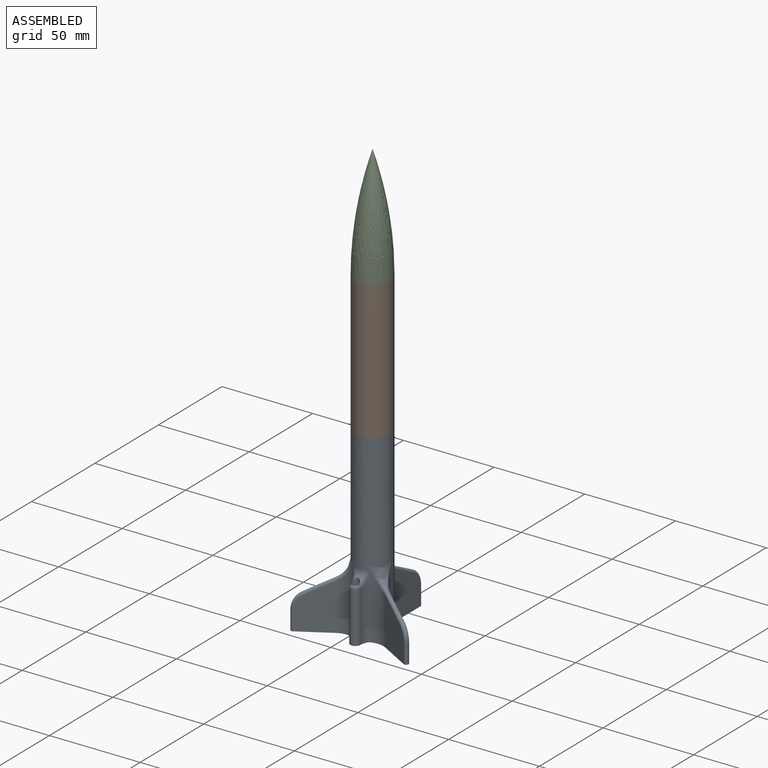
[diagram: assembled view]
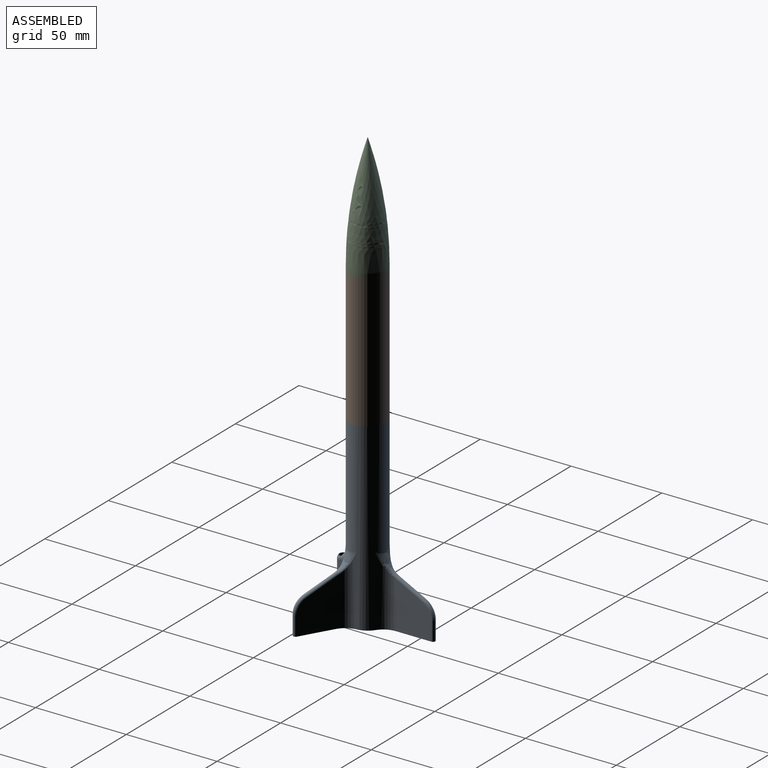
[diagram: assembled view, second angle]
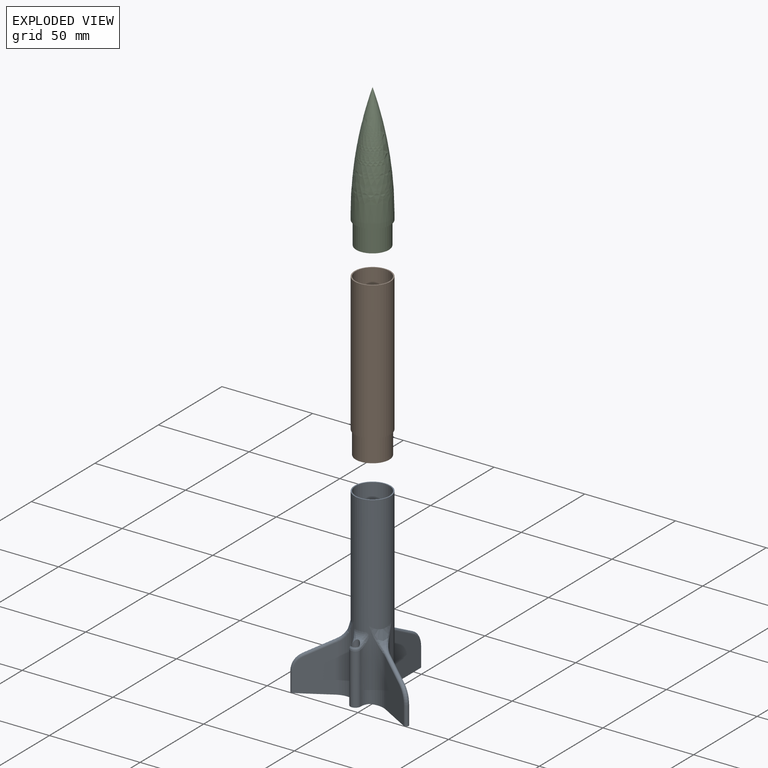
[diagram: exploded view]
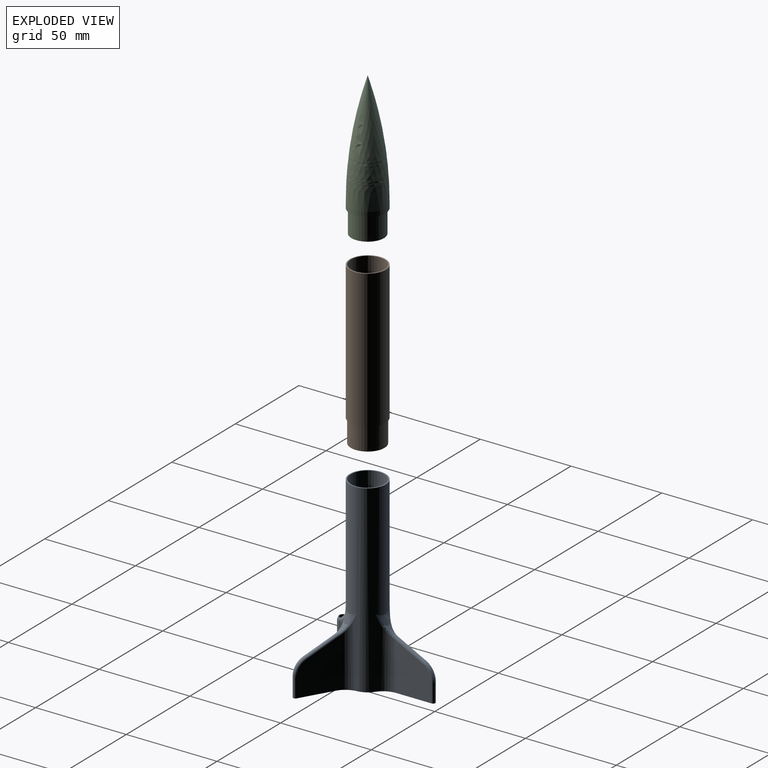
[diagram: exploded view, second angle]
ASSEMBLY  parts=3 mates=2
PART A: 57 faces, bbox 66.1x57.7x101.6 mm
  f0: cylinder r=9.28mm len=18.57mm, axis (0,0,-1), area 889mm2, adj f3,f53
  f1: cylinder r=9.28mm len=73.66mm, axis (0,0,-1), area 4288.1mm2, adj f4,f54,f55,f56
  f2: cylinder r=9.92mm len=101.6mm, axis (0,0,-1), area 4668mm2, adj f3,f4,f8,f9,f10,f21,f22,f23
  f3: plane 19.84x19.84mm, normal (0,0,1), area 38.3mm2, adj f0,f2
  f4: plane 64.87x56.52mm, normal (0,0,-1), area 307.4mm2, adj f1,f2,f5,f6,f8,f9,f17,f18
  f5: plane 25.94x19.48mm, normal (1,0,0), area 403.2mm2, adj f4,f9,f15,f16,f17
  f6: plane 25.94x19.48mm, normal (-1,0,0), area 403.2mm2, adj f4,f8,f15,f16,f17
  f7: plane 1.64x0.84mm, normal (0,0.46,0.89), area 0.1mm2, adj f10,f13,f14
  f8: cylinder r=10.16mm len=38.78mm, axis (0,0,-1), area 300.1mm2, adj f2,f4,f6,f11,f13
  f9: cylinder r=10.16mm len=38.78mm, axis (0,0,-1), area 300.1mm2, adj f2,f4,f5,f12,f14
  f10: bspline ~22.86x10.87mm, area 53.6mm2, adj f2,f7,f11,f12
  f11: bspline ~12.73x8.84mm, area 10mm2, adj f8,f10,f13
  f12: bspline ~12.73x8.84mm, area 9.9mm2, adj f9,f10,f14
  f13: bspline ~2.03x1.97mm, area 3.4mm2, adj f7,f8,f11,f15
  f14: bspline ~2.03x1.97mm, area 3.4mm2, adj f7,f9,f12,f15
  f15: cylinder r=1.27mm len=15.21mm, axis (0,-0.89,0.46), area 65.6mm2, adj f5,f6,f13,f14,f16
  f16: torus R=8.89mm, axis (1,0,0), area 42.5mm2, adj f5,f6,f15,f17
  f17: cylinder r=1.27mm len=10.54mm, axis (0,0,1), area 42mm2, adj f4,f5,f6,f16
  f18: plane 25.94x16.87mm, normal (-0.5,-0.87,0), area 403.2mm2, adj f4,f23,f27,f29,f30
  f19: plane 1.48x0.92mm, normal (0.39,-0.23,0.89), area 0.1mm2, adj f22,f25,f28
  f20: plane 25.94x16.87mm, normal (0.5,0.87,0), area 403.2mm2, adj f4,f21,f27,f29,f30
  f21: cylinder r=10.16mm len=38.78mm, axis (0,0,-1), area 300.1mm2, adj f2,f4,f20,f26,f28
  f22: bspline ~19.8x12.52mm, area 53.6mm2, adj f2,f19,f24,f26
  f23: cylinder r=10.16mm len=38.78mm, axis (0,0,-1), area 300.1mm2, adj f2,f4,f18,f24,f25,f45
  f24: bspline ~12.73x10.49mm, area 9.9mm2, adj f22,f23,f25
  f25: bspline ~2.45x1.97mm, area 3.4mm2, adj f19,f23,f24,f27
  f26: bspline ~12.73x9.32mm, area 10mm2, adj f21,f22,f28
  f27: cylinder r=1.27mm len=14.12mm, axis (0.77,-0.45,-0.46), area 65.6mm2, adj f18,f20,f25,f28,f29
  f28: bspline ~2.21x1.97mm, area 3.4mm2, adj f19,f21,f26,f27
  f29: torus R=8.89mm, axis (-0.5,-0.87,0), area 42.5mm2, adj f18,f20,f27,f30
  f30: cylinder r=1.27mm len=10.54mm, axis (0,0,-1), area 42mm2, adj f4,f18,f20,f29
  f31: plane 25.94x16.87mm, normal (0.5,-0.87,0), area 403.2mm2, adj f4,f34,f40,f42,f43
  f32: plane 1.48x0.92mm, normal (-0.39,-0.23,0.89), area 0.1mm2, adj f35,f38,f41
  f33: plane 25.94x16.87mm, normal (-0.5,0.87,0), area 403.2mm2, adj f4,f36,f40,f42,f43
  f34: cylinder r=10.16mm len=38.78mm, axis (0,0,-1), area 300.1mm2, adj f2,f4,f31,f39,f41,f44
  f35: bspline ~19.8x12.52mm, area 53.6mm2, adj f2,f32,f37,f39
  f36: cylinder r=10.16mm len=38.78mm, axis (0,0,-1), area 300.1mm2, adj f2,f4,f33,f37,f38
  f37: bspline ~12.73x9.32mm, area 9.9mm2, adj f35,f36,f38
  f38: bspline ~2.21x1.97mm, area 3.4mm2, adj f32,f36,f37,f40
  f39: bspline ~12.73x10.49mm, area 10mm2, adj f34,f35,f41
  f40: cylinder r=1.27mm len=14.12mm, axis (-0.77,-0.45,-0.46), area 65.6mm2, adj f31,f33,f38,f41,f42
  f41: bspline ~2.45x1.97mm, area 3.4mm2, adj f32,f34,f39,f40
  f42: torus R=8.89mm, axis (-0.5,0.87,0), area 42.5mm2, adj f31,f33,f40,f43
  f43: cylinder r=1.27mm len=10.54mm, axis (0,0,-1), area 42mm2, adj f4,f31,f33,f42
  f44: cylinder r=7.73mm len=33.12mm, axis (0,0,-1), area 149.7mm2, adj f4,f34,f46,f51
  f45: cylinder r=7.73mm len=33.12mm, axis (0,0,-1), area 149.7mm2, adj f4,f23,f46,f49
  f46: cylinder r=2.74mm len=28.08mm, axis (0,0,-1), area 242mm2, adj f4,f44,f45,f50
  f47: cylinder r=2.1mm len=31.93mm, axis (0,0,-1), area 400.6mm2, adj f4,f48,f49,f50,f51
  f48: torus R=15mm, axis (0,0,-1), area 20mm2, adj f2,f47,f49,f51
  f49: bspline ~8x6.43mm, area 18.5mm2, adj f2,f45,f47,f48,f50
  f50: bspline ~5.49x2.74mm, area 13.4mm2, adj f46,f47,f49,f51
  f51: bspline ~7.92x5.73mm, area 17.4mm2, adj f2,f44,f47,f48,f50
  f52: cylinder r=7.62mm len=15.24mm, axis (0,0,-1), area 608mm2, adj f53,f54
  f53: plane 18.57x18.57mm, normal (0,0,1), area 88.4mm2, adj f0,f52
  f54: plane 18.57x18.57mm, normal (0,0,-1), area 88.4mm2, adj f1,f52
  f55: cylinder r=2.54mm len=3.75mm, axis (0,0,-1), area 9.6mm2, adj f1,f4,f56
  f56: plane 3.75x1.02mm, normal (0,0,1), area 2.6mm2, adj f1,f55
PART B: 14 faces, bbox 20x19.8x88.9 mm
  f0: cylinder r=9.28mm len=67.02mm, axis (0,0,-1), area 3683.7mm2, adj f2,f7,f8,f12,f13
  f1: cylinder r=9.92mm len=76.2mm, axis (0,0,-1), area 4748.9mm2, adj f2,f3
  f2: plane 19.84x19.84mm, normal (0,0,1), area 38.3mm2, adj f0,f1
  f3: plane 19.84x19.84mm, normal (0,0,-1), area 38.3mm2, adj f1,f4
  f4: cylinder r=9.28mm len=18.57mm, axis (0,0,1), area 740.8mm2, adj f3,f6
  f5: cylinder r=8.42mm len=19.05mm, axis (0,0,1), area 1007.8mm2, adj f6,f7
  f6: plane 18.57x18.57mm, normal (0,0,-1), area 48mm2, adj f4,f5
  f7: torus R=4.2mm, axis (0,0,-1), area 169.8mm2, adj f0,f5
  f8: cylinder r=4.19mm len=26.67mm, axis (0,0,1), area 227.1mm2, adj f0,f10,f11,f12,f13
  f9: cylinder r=1.65mm len=23.93mm, axis (0,0,1), area 216.3mm2, adj f12,f13
  f10: plane 2.66x0.38mm, normal (0,0,-1), area 0.7mm2, adj f8,f13
  f11: plane 2.66x0.38mm, normal (0,0,1), area 0.7mm2, adj f8,f12
  f12: torus R=5.47mm, axis (0,0,1), area 31mm2, adj f0,f8,f9,f11
  f13: torus R=5.47mm, axis (0,0,1), area 31mm2, adj f0,f8,f9,f10
PART C: 15 faces, bbox 19.8x19.8x78.7 mm
  f0: plane 18.57x18.57mm, normal (0,0,1), area 52mm2, adj f2,f14
  f1: cylinder r=8.98mm len=17.96mm, axis (0,0,-1), area 716.5mm2, adj f3,f12
  f2: cylinder r=8.34mm len=16.69mm, axis (0,0,-1), area 721.1mm2, adj f0,f3,f6,f7,f8,f9,f10
  f3: plane 17.96x17.96mm, normal (0,0,-1), area 79.4mm2, adj f1,f2,f4,f5,f7,f8,f9,f10
  f4: plane 13.2x6.35mm, normal (-1,0,0), area 83.8mm2, adj f3,f6,f7,f10
  f5: plane 13.2x6.35mm, normal (1,0,0), area 83.8mm2, adj f3,f6,f8,f9
  f6: plane 16.69x5.99mm, normal (0,0,1), area 44.9mm2, adj f2,f4,f5,f7,f8,f9,f10
  f7: cylinder r=1.27mm len=6.35mm, axis (0,0,-1), area 15.6mm2, adj f2,f3,f4,f6
  f8: cylinder r=1.27mm len=6.35mm, axis (0,0,-1), area 15.6mm2, adj f2,f3,f5,f6
  f9: cylinder r=1.27mm len=6.35mm, axis (0,0,-1), area 15.6mm2, adj f2,f3,f5,f6
  f10: cylinder r=1.27mm len=6.35mm, axis (0,0,-1), area 15.6mm2, adj f2,f3,f4,f6
  f11: cylinder r=9.92mm len=19.84mm, axis (0,0,1), area 158.3mm2, adj f12,f13
  f12: plane 19.84x19.84mm, normal (0,0,-1), area 55.8mm2, adj f1,f11
  f13: revolved ~63.5x19.84mm, area 2676.7mm2, adj f11
  f14: revolved ~61.39x18.57mm, area 2419.7mm2, adj f0
PLACE A t=(-50.68,62.54,-25.41)mm
PLACE B t=(-50.68,62.54,76.19)mm
PLACE C t=(-50.68,62.54,137.15)mm
MATE fastened B.f0 <-> C.f1  axis (0,0,-1) through (-50.68,62.54,152.39)mm
MATE fastened A.f0 <-> B.f1  axis (0,0,-1) through (-50.68,62.54,76.19)mm
